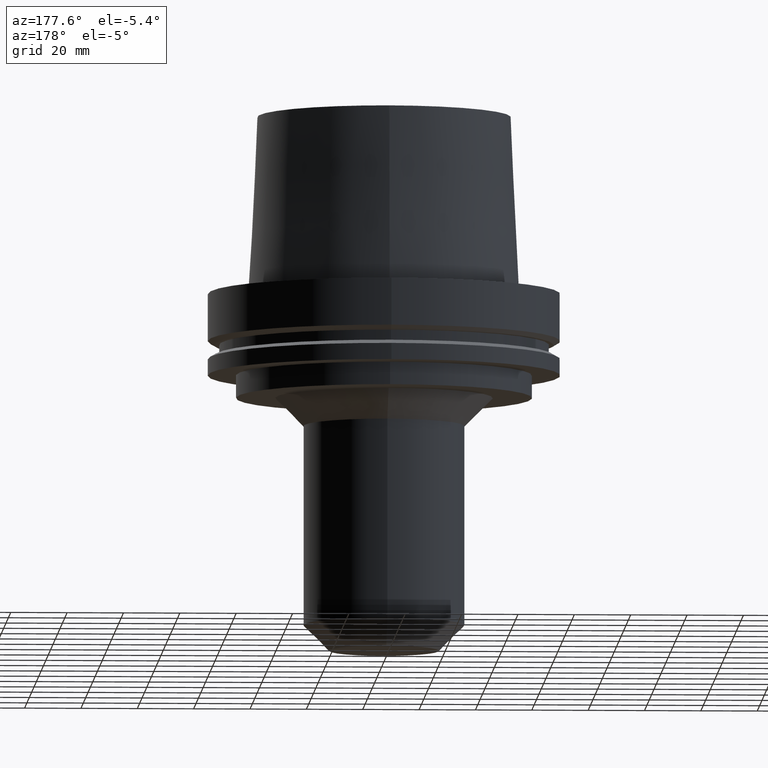
[diagram: clean part render]
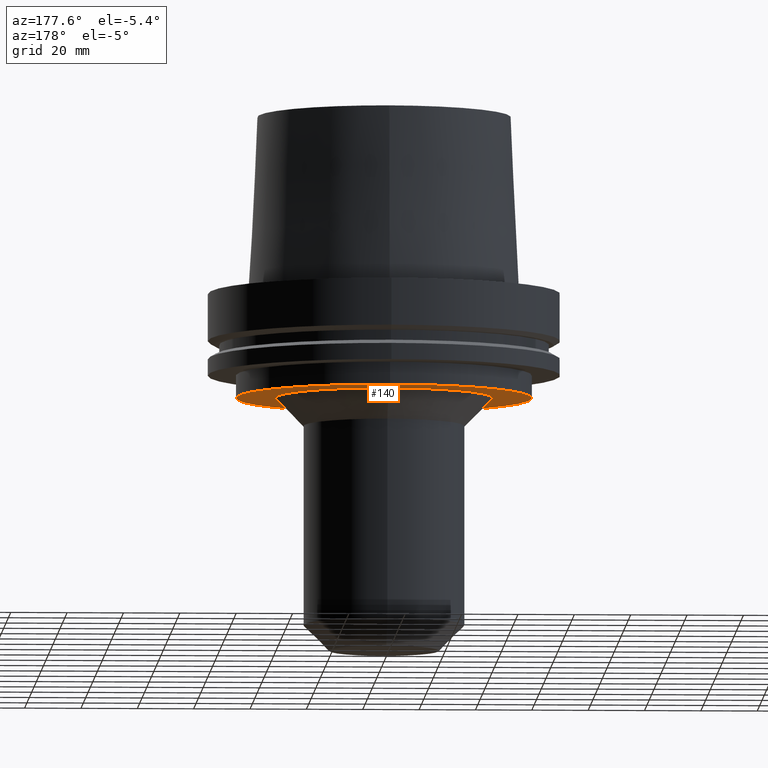
[diagram: same view with one face highlighted and labeled with its STEP entity id]
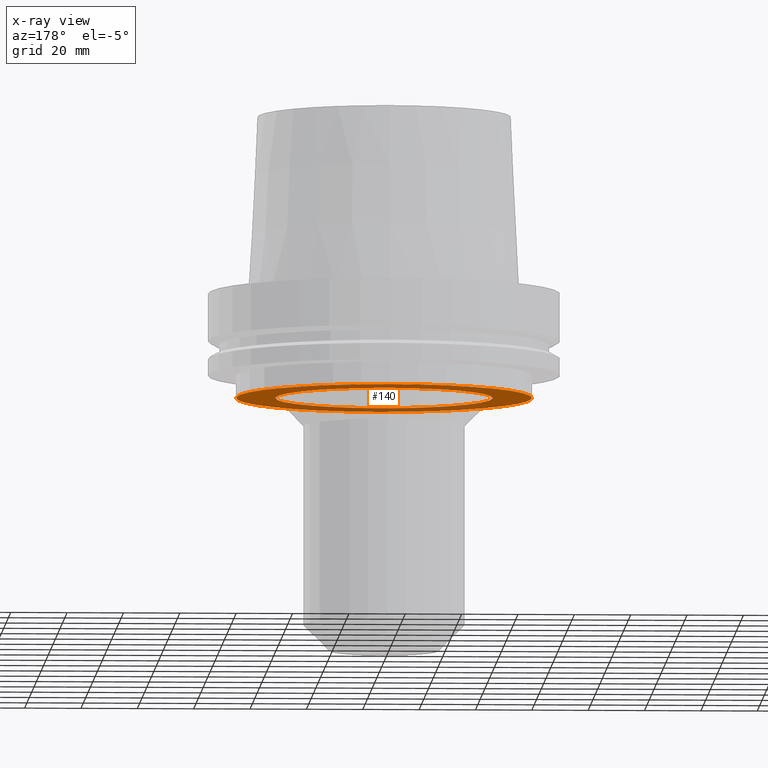
[diagram: x-ray of the same camera — body ghosted, the highlighted face saturated]
A machine part, auxiliary view. The second image highlights one B-rep face of the part: STEP entity #140.
The next image is the same camera in x-ray: the body ghosted, the highlighted face saturated — about 29% of this face is hidden behind the body in this view.
In plain terms, the highlighted planar face has unit normal (0, 0, -1).
Its self-contained STEP definition (entity closure, byte-faithful):
#64=EDGE_CURVE('Unnamed[1]',#170,#170,#171,.T.);
#103=EDGE_CURVE('Unnamed[1]',#230,#230,#231,.T.);
#140=ADVANCED_FACE('Unnamed[1]',(#287,#288),#289,.T.);
#170=VERTEX_POINT('',#313);
#171=CIRCLE('',#314,52.4999999999998);
#230=VERTEX_POINT('',#387);
#231=CIRCLE('',#388,38.6);
#287=FACE_BOUND('',#459,.T.);
#288=FACE_OUTER_BOUND('',#460,.T.);
#289=PLANE('',#461);
#313=CARTESIAN_POINT('',(2.26559657842261E-015,52.4999999999998,-37.0));
#314=AXIS2_PLACEMENT_3D('',#479,#480,#481);
#387=CARTESIAN_POINT('',(2.26559657842261E-015,38.6,-37.0));
#388=AXIS2_PLACEMENT_3D('',#545,#546,#547);
#459=EDGE_LOOP('',(#608));
#460=EDGE_LOOP('',(#609));
#461=AXIS2_PLACEMENT_3D('',#610,#611,#612);
#479=CARTESIAN_POINT('',(2.26559657842261E-015,4.53119315684521E-015,-37.0));
#480=DIRECTION('',(6.12323399573677E-017,1.22464679914709E-016,-1.0));
#481=DIRECTION('',(-1.23259516440784E-032,1.0,1.22464679914709E-016));
#545=CARTESIAN_POINT('',(2.26559657842261E-015,4.53119315684521E-015,-37.0));
#546=DIRECTION('',(6.12323399573677E-017,1.22464679914774E-016,-1.0));
#547=DIRECTION('',(-1.23259516440802E-032,1.0,1.22464679914774E-016));
#608=ORIENTED_EDGE('',*,*,#103,.F.);
#609=ORIENTED_EDGE('',*,*,#64,.T.);
#610=CARTESIAN_POINT('',(2.26559657842261E-015,45.5499999999999,-37.0));
#611=DIRECTION('',(6.12323399573677E-017,1.22464679914735E-016,-1.0));
#612=DIRECTION('',(-1.23259516440783E-032,1.0,1.22464679914735E-016));